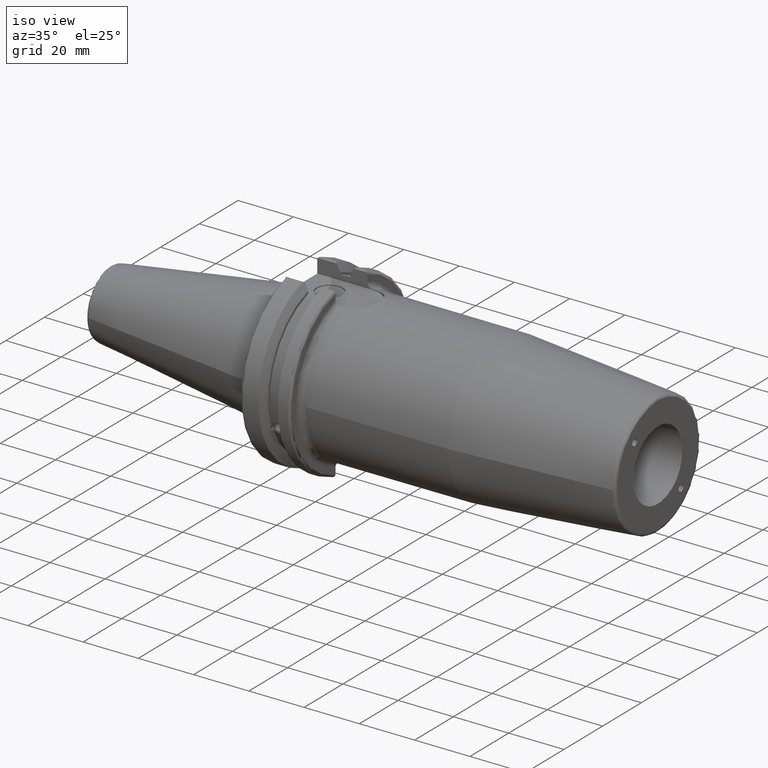
[diagram: clean part render]
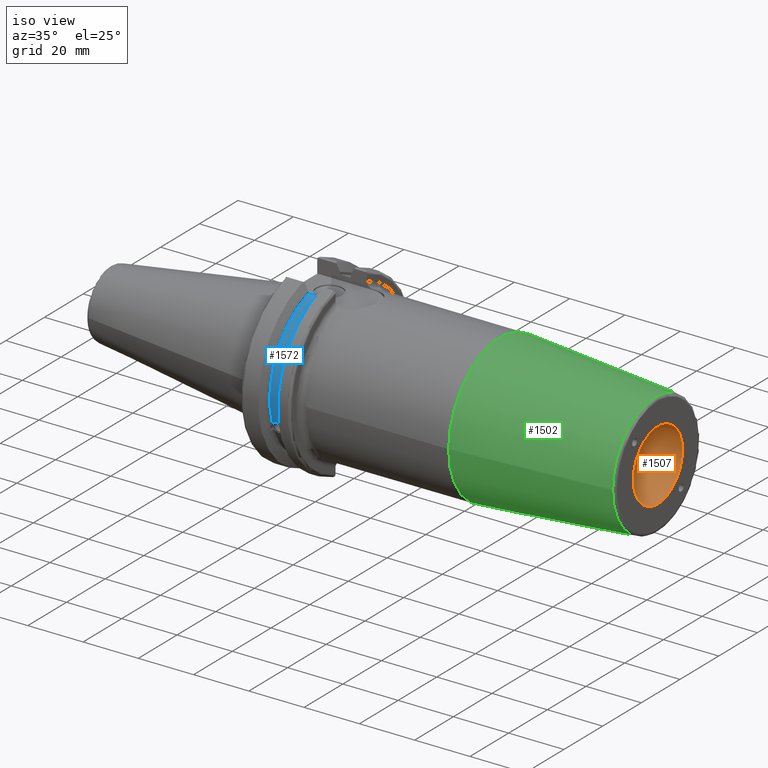
[diagram: same view with three faces highlighted in distinct colors, each labeled with its STEP entity id]
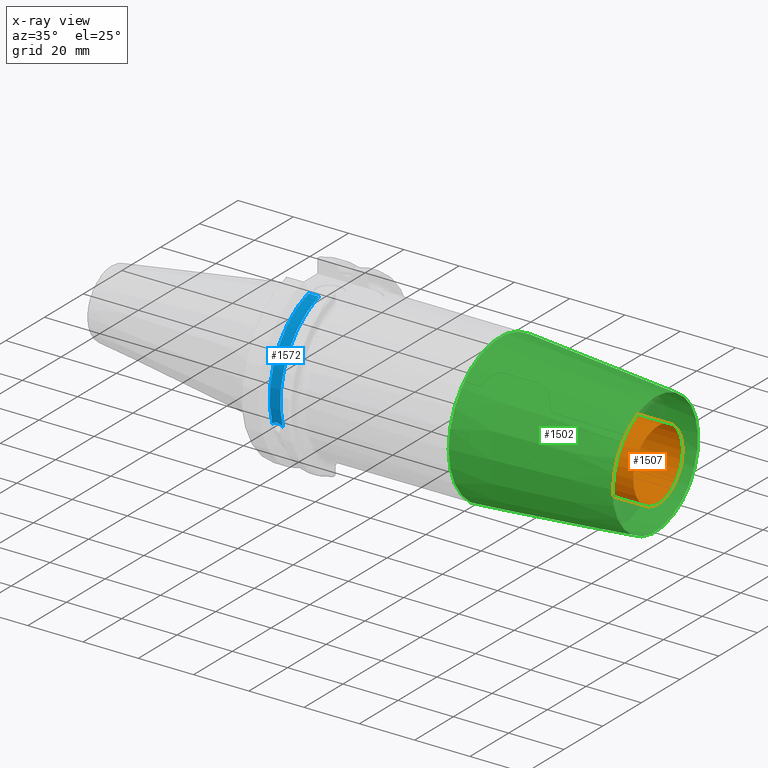
[diagram: x-ray of the same camera — body ghosted, the three highlighted faces saturated]
A machine part, iso view with three faces highlighted in distinct colors.
The next image is the same camera in x-ray (body ghosted, the three faces saturated) — at least one of them is partly hidden behind the body in this view.
Their STEP definitions:

[orange] entity #1507 — the highlighted cylindrical surface (bore or boss wall) has radius 12.7 mm, axis along (1, 0, 0).
#140=FACE_OUTER_BOUND('',#233,.T.);
#233=EDGE_LOOP('',(#1064,#1065,#1066,#1067));
#331=CIRCLE('',#1628,12.7);
#338=CIRCLE('',#1641,12.7);
#407=LINE('',#2484,#490);
#490=VECTOR('',#1878,12.7);
#622=VERTEX_POINT('',#2357);
#635=VERTEX_POINT('',#2483);
#785=EDGE_CURVE('',#622,#622,#331,.T.);
#803=EDGE_CURVE('',#622,#635,#407,.T.);
#804=EDGE_CURVE('',#635,#635,#338,.T.);
#1064=ORIENTED_EDGE('',*,*,#785,.T.);
#1065=ORIENTED_EDGE('',*,*,#803,.T.);
#1066=ORIENTED_EDGE('',*,*,#804,.F.);
#1067=ORIENTED_EDGE('',*,*,#803,.F.);
#1468=CYLINDRICAL_SURFACE('',#1640,12.7);
#1507=ADVANCED_FACE('',(#140),#1468,.F.);
#1628=AXIS2_PLACEMENT_3D('',#2358,#1848,#1849);
#1640=AXIS2_PLACEMENT_3D('',#2482,#1876,#1877);
#1641=AXIS2_PLACEMENT_3D('',#2485,#1879,#1880);
#1848=DIRECTION('center_axis',(1.,0.,0.));
#1849=DIRECTION('ref_axis',(0.,0.,-1.));
#1876=DIRECTION('center_axis',(1.,0.,0.));
#1877=DIRECTION('ref_axis',(0.,1.,0.));
#1878=DIRECTION('',(-1.,0.,0.));
#1879=DIRECTION('center_axis',(1.,0.,0.));
#1880=DIRECTION('ref_axis',(0.,0.,-1.));
#2357=CARTESIAN_POINT('',(130.,-12.7,-1.55530143491714E-15));
#2358=CARTESIAN_POINT('Origin',(130.,0.,0.));
#2482=CARTESIAN_POINT('Origin',(106.,0.,0.));
#2483=CARTESIAN_POINT('',(82.,-12.7,-1.55530143491714E-15));
#2484=CARTESIAN_POINT('',(106.,-12.7,-1.55530143491714E-15));
#2485=CARTESIAN_POINT('Origin',(82.,0.,0.));

[blue] entity #1572 — the highlighted cylindrical surface (partial cylindrical patch) has radius 28.15 mm, axis along (1, 0, 0).
#205=FACE_OUTER_BOUND('',#308,.T.);
#308=EDGE_LOOP('',(#1430,#1431,#1432,#1433));
#389=CIRCLE('',#1773,28.15);
#391=CIRCLE('',#1777,28.15);
#455=LINE('',#2976,#538);
#538=VECTOR('',#2110,10.);
#574=B_SPLINE_CURVE_WITH_KNOTS('',3,(#2563,#2564,#2565,#2566,#2567,#2568,
#2569,#2570,#2571,#2572,#2573,#2574,#2575,#2576),.UNSPECIFIED.,.F.,.F.,
(4,2,2,2,2,2,4),(0.401639126382403,0.474814416953736,0.553950208498303,
0.63308600004287,0.712221791587437,0.791357583132004,0.864532873703337),
 .UNSPECIFIED.);
#653=VERTEX_POINT('',#2560);
#654=VERTEX_POINT('',#2562);
#732=VERTEX_POINT('',#2973);
#733=VERTEX_POINT('',#2975);
#830=EDGE_CURVE('',#654,#653,#574,.T.);
#937=EDGE_CURVE('',#733,#732,#455,.T.);
#983=EDGE_CURVE('',#732,#654,#389,.T.);
#985=EDGE_CURVE('',#733,#653,#391,.T.);
#1430=ORIENTED_EDGE('',*,*,#830,.T.);
#1431=ORIENTED_EDGE('',*,*,#985,.F.);
#1432=ORIENTED_EDGE('',*,*,#937,.T.);
#1433=ORIENTED_EDGE('',*,*,#983,.T.);
#1490=CYLINDRICAL_SURFACE('',#1776,28.15);
#1572=ADVANCED_FACE('',(#205),#1490,.T.);
#1773=AXIS2_PLACEMENT_3D('',#3117,#2209,#2210);
#1776=AXIS2_PLACEMENT_3D('',#3120,#2215,#2216);
#1777=AXIS2_PLACEMENT_3D('',#3121,#2217,#2218);
#2110=DIRECTION('',(-1.,0.,0.));
#2209=DIRECTION('center_axis',(1.,0.,0.));
#2210=DIRECTION('ref_axis',(0.,0.,-1.));
#2215=DIRECTION('center_axis',(1.,0.,0.));
#2216=DIRECTION('ref_axis',(0.,-0.887654187951484,0.46051063246378));
#2217=DIRECTION('center_axis',(1.,0.,0.));
#2218=DIRECTION('ref_axis',(0.,0.,-1.));
#2560=CARTESIAN_POINT('',(13.0491,-26.734714844398,-8.81348524641212));
#2562=CARTESIAN_POINT('',(9.2191,-26.734714844398,-8.81348524641212));
#2563=CARTESIAN_POINT('Ctrl Pts',(9.2191,-26.734714844398,-8.81348524641212));
#2564=CARTESIAN_POINT('Ctrl Pts',(9.32533057097183,-26.8086519721597,-8.58920529678291));
#2565=CARTESIAN_POINT('Ctrl Pts',(9.4768201377051,-26.8729987454904,-8.38416529997369));
#2566=CARTESIAN_POINT('Ctrl Pts',(9.83557062657411,-26.9778908791383,-8.04056861831091));
#2567=CARTESIAN_POINT('Ctrl Pts',(10.0716450112988,-27.0233016799732,-7.88512567185902));
#2568=CARTESIAN_POINT('Ctrl Pts',(10.5890125426388,-27.0826966800569,-7.6786444840004));
#2569=CARTESIAN_POINT('Ctrl Pts',(10.8703140281848,-27.0968804077294,-7.62768458768512));
#2570=CARTESIAN_POINT('Ctrl Pts',(11.3978859718152,-27.0968804077294,-7.62768458768512));
#2571=CARTESIAN_POINT('Ctrl Pts',(11.6791874573612,-27.0826966800569,-7.6786444840004));
#2572=CARTESIAN_POINT('Ctrl Pts',(12.1965549887012,-27.0233016799732,-7.88512567185902));
#2573=CARTESIAN_POINT('Ctrl Pts',(12.4326293734259,-26.9778908791383,-8.04056861831091));
#2574=CARTESIAN_POINT('Ctrl Pts',(12.7913798622949,-26.8729987454904,-8.38416529997369));
#2575=CARTESIAN_POINT('Ctrl Pts',(12.9428694290282,-26.8086519721597,-8.58920529678291));
#2576=CARTESIAN_POINT('Ctrl Pts',(13.0491,-26.734714844398,-8.81348524641212));
#2973=CARTESIAN_POINT('',(9.2191,-8.19,26.932255754021));
#2975=CARTESIAN_POINT('',(13.0491,-8.19,26.932255754021));
#2976=CARTESIAN_POINT('',(11.1341,-8.19,26.932255754021));
#3117=CARTESIAN_POINT('Origin',(9.2191,0.,0.));
#3120=CARTESIAN_POINT('Origin',(11.1341,0.,0.));
#3121=CARTESIAN_POINT('Origin',(13.0491,0.,0.));

[green] entity #1502 — the highlighted conical surface has half-angle 4.5 deg.
#104=CONICAL_SURFACE('',#1629,24.25,0.0785398163397448);
#135=FACE_OUTER_BOUND('',#226,.T.);
#226=EDGE_LOOP('',(#1036,#1037,#1038,#1039,#1040));
#319=CIRCLE('',#1606,26.5);
#329=CIRCLE('',#1625,22.0725268420749);
#330=CIRCLE('',#1626,22.0725268420749);
#403=LINE('',#2360,#486);
#486=VECTOR('',#1852,24.25);
#604=VERTEX_POINT('',#2268);
#620=VERTEX_POINT('',#2351);
#621=VERTEX_POINT('',#2353);
#760=EDGE_CURVE('',#604,#604,#319,.T.);
#783=EDGE_CURVE('',#620,#621,#329,.T.);
#784=EDGE_CURVE('',#621,#620,#330,.T.);
#786=EDGE_CURVE('',#621,#604,#403,.T.);
#1036=ORIENTED_EDGE('',*,*,#784,.F.);
#1037=ORIENTED_EDGE('',*,*,#786,.T.);
#1038=ORIENTED_EDGE('',*,*,#760,.T.);
#1039=ORIENTED_EDGE('',*,*,#786,.F.);
#1040=ORIENTED_EDGE('',*,*,#783,.F.);
#1502=ADVANCED_FACE('',(#135),#104,.T.);
#1606=AXIS2_PLACEMENT_3D('',#2269,#1797,#1798);
#1625=AXIS2_PLACEMENT_3D('',#2354,#1842,#1843);
#1626=AXIS2_PLACEMENT_3D('',#2355,#1844,#1845);
#1629=AXIS2_PLACEMENT_3D('',#2359,#1850,#1851);
#1797=DIRECTION('center_axis',(1.,0.,0.));
#1798=DIRECTION('ref_axis',(0.,0.,-1.));
#1842=DIRECTION('center_axis',(1.,0.,0.));
#1843=DIRECTION('ref_axis',(0.,-1.,3.06161699786838E-17));
#1844=DIRECTION('center_axis',(1.,0.,0.));
#1845=DIRECTION('ref_axis',(0.,-1.,3.06161699786838E-17));
#1850=DIRECTION('center_axis',(-1.,0.,0.));
#1851=DIRECTION('ref_axis',(0.,1.,0.));
#1852=DIRECTION('',(-0.996917333733128,-0.0784590957278449,-9.60846804471011E-18));
#2268=CARTESIAN_POINT('',(72.8220786872138,-26.5,-3.24531401774049E-15));
#2269=CARTESIAN_POINT('Origin',(72.8220786872138,0.,0.));
#2351=CARTESIAN_POINT('',(129.078459095728,-2.70310493462411E-15,22.0725268420749));
#2353=CARTESIAN_POINT('',(129.078459095728,-22.0725268420749,-2.70310493462411E-15));
#2354=CARTESIAN_POINT('Origin',(129.078459095728,0.,-3.37888116828014E-15));
#2355=CARTESIAN_POINT('Origin',(129.078459095728,0.,-3.37888116828014E-15));
#2359=CARTESIAN_POINT('Origin',(101.411039343607,0.,0.));
#2360=CARTESIAN_POINT('',(101.411039343607,-24.25,-2.96976848793233E-15));